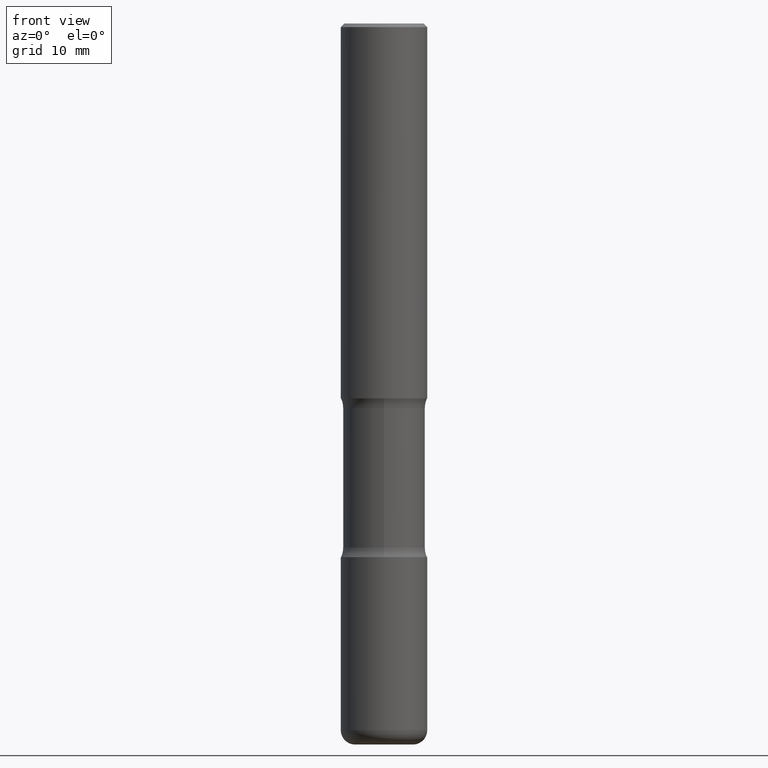
[diagram: clean part render]
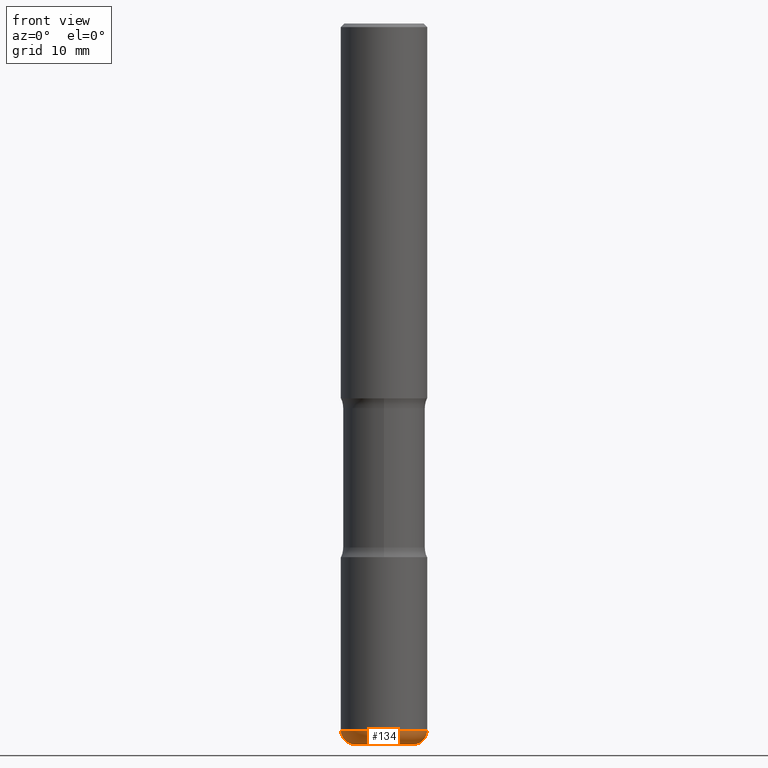
[diagram: same view with one face highlighted and labeled with its STEP entity id]
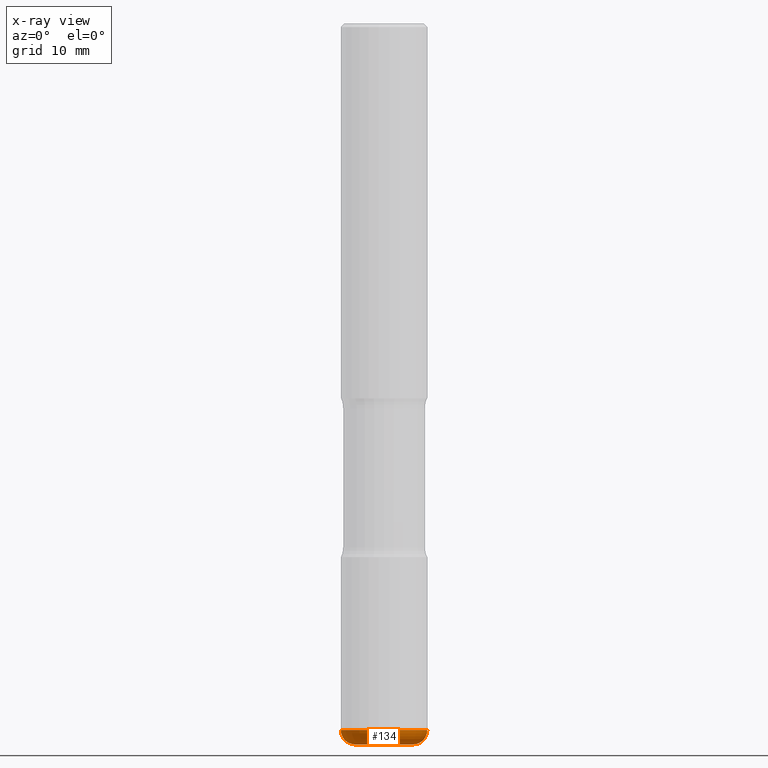
[diagram: x-ray of the same camera — body ghosted, the highlighted face saturated]
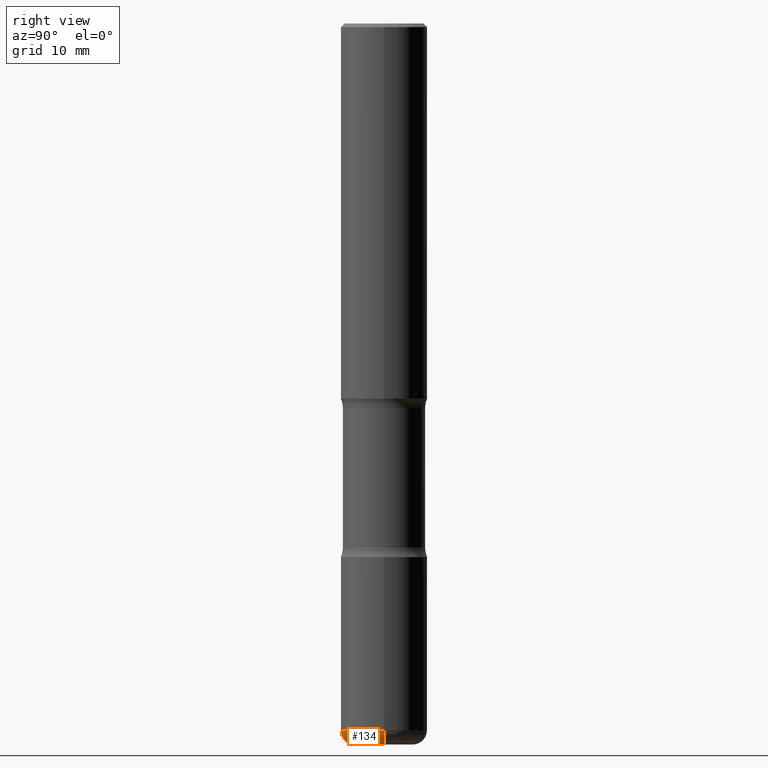
[diagram: same view with one face highlighted and labeled with its STEP entity id]
A machine part, front view. The second image highlights one B-rep face of the part: STEP entity #134.
The next image is the same camera in x-ray: the body ghosted, the highlighted face saturated — about 0% of this face is hidden behind the body in this view.
A second angle (right view) of the same face is appended — the face is thin or edge-on in the first view.
In plain terms, the highlighted toroidal blend (fillet) surface has major radius 4.0005 mm and minor (blend) radius 1.999 mm.
Its self-contained STEP definition (entity closure, byte-faithful):
#8 = CARTESIAN_POINT ( 'NONE',  ( 0.2362000000000003264, -1.512055823412800345E-14, -3.858299999999998509 ) ) ;
#15 = AXIS2_PLACEMENT_3D ( 'NONE', #37, #251, #169 ) ;
#26 = CARTESIAN_POINT ( 'NONE',  ( -0.1575000000000002232, -1.235207764083634616E-14, -3.858299999999998509 ) ) ;
#28 = EDGE_CURVE ( 'NONE', #114, #275, #127, .T. ) ;
#37 = CARTESIAN_POINT ( 'NONE',  ( 9.435352294904109900E-29, -1.347118244965850534E-14, -3.858299999999998509 ) ) ;
#42 = EDGE_CURVE ( 'NONE', #363, #342, #84, .T. ) ;
#50 = CARTESIAN_POINT ( 'NONE',  ( 0.1575000000000002232, -1.457099907139409361E-14, -3.858299999999998509 ) ) ;
#51 = ORIENTED_EDGE ( 'NONE', *, *, #42, .T. ) ;
#58 = DIRECTION ( 'NONE',  ( -2.445468806185136597E-29, 3.491481338843145583E-15, 1.000000000000000000 ) ) ;
#80 = CARTESIAN_POINT ( 'NONE',  ( -0.2362000000000003264, -1.179288050779314737E-14, -3.858299999999998509 ) ) ;
#82 = FACE_OUTER_BOUND ( 'NONE', #228, .T. ) ;
#84 = CIRCLE ( 'NONE', #496, 0.1575000000000002232 ) ;
#114 = VERTEX_POINT ( 'NONE', #80 ) ;
#127 = CIRCLE ( 'NONE', #15, 0.2362000000000002153 ) ;
#134 = ADVANCED_FACE ( 'NONE', ( #82 ), #331, .T. ) ;
#142 = DIRECTION ( 'NONE',  ( -6.982962677686266711E-15, -1.000000000000000000, 3.491481338843145583E-15 ) ) ;
#166 = AXIS2_PLACEMENT_3D ( 'NONE', #264, #58, #437 ) ;
#169 = DIRECTION ( 'NONE',  ( 1.000000000000000000, -6.982962677686266711E-15, 0.000000000000000000 ) ) ;
#175 = ORIENTED_EDGE ( 'NONE', *, *, #212, .T. ) ;
#202 = CARTESIAN_POINT ( 'NONE',  ( 9.627810689950880306E-29, -1.374596203102546026E-14, -3.936999999999998945 ) ) ;
#210 = DIRECTION ( 'NONE',  ( -2.445468806185136597E-29, 3.491481338843145583E-15, 1.000000000000000000 ) ) ;
#212 = EDGE_CURVE ( 'NONE', #342, #275, #481, .T. ) ;
#225 = ORIENTED_EDGE ( 'NONE', *, *, #459, .F. ) ;
#228 = EDGE_LOOP ( 'NONE', ( #225, #51, #175, #407 ) ) ;
#240 = AXIS2_PLACEMENT_3D ( 'NONE', #50, #142, #472 ) ;
#243 = DIRECTION ( 'NONE',  ( 1.000000000000000000, -6.982962677686265133E-15, 0.000000000000000000 ) ) ;
#251 = DIRECTION ( 'NONE',  ( -2.445468806185136597E-29, 3.491481338843145583E-15, 1.000000000000000000 ) ) ;
#264 = CARTESIAN_POINT ( 'NONE',  ( 9.435352294904109900E-29, -1.347118244965850534E-14, -3.858299999999998509 ) ) ;
#274 = CARTESIAN_POINT ( 'NONE',  ( -0.1575000000000002232, -1.220986886499822344E-14, -3.936999999999998945 ) ) ;
#275 = VERTEX_POINT ( 'NONE', #8 ) ;
#277 = DIRECTION ( 'NONE',  ( 7.105427357601001859E-15, 1.000000000000000000, -3.491481338843145583E-15 ) ) ;
#331 = TOROIDAL_SURFACE ( 'NONE', #166, 0.1575000000000002232, 0.07870000000000021423 ) ;
#342 = VERTEX_POINT ( 'NONE', #447 ) ;
#363 = VERTEX_POINT ( 'NONE', #274 ) ;
#364 = DIRECTION ( 'NONE',  ( -1.000000000000000000, 7.105427357600997914E-15, 0.000000000000000000 ) ) ;
#407 = ORIENTED_EDGE ( 'NONE', *, *, #28, .F. ) ;
#437 = DIRECTION ( 'NONE',  ( 1.000000000000000000, -6.982962677686268288E-15, 4.883557194083113462E-29 ) ) ;
#444 = CIRCLE ( 'NONE', #453, 0.07870000000000021423 ) ;
#447 = CARTESIAN_POINT ( 'NONE',  ( 0.1575000000000002232, -1.484577865276104695E-14, -3.936999999999998945 ) ) ;
#453 = AXIS2_PLACEMENT_3D ( 'NONE', #26, #277, #364 ) ;
#459 = EDGE_CURVE ( 'NONE', #363, #114, #444, .T. ) ;
#472 = DIRECTION ( 'NONE',  ( 1.000000000000000000, -6.982962677686276177E-15, 0.000000000000000000 ) ) ;
#481 = CIRCLE ( 'NONE', #240, 0.07870000000000021423 ) ;
#496 = AXIS2_PLACEMENT_3D ( 'NONE', #202, #210, #243 ) ;